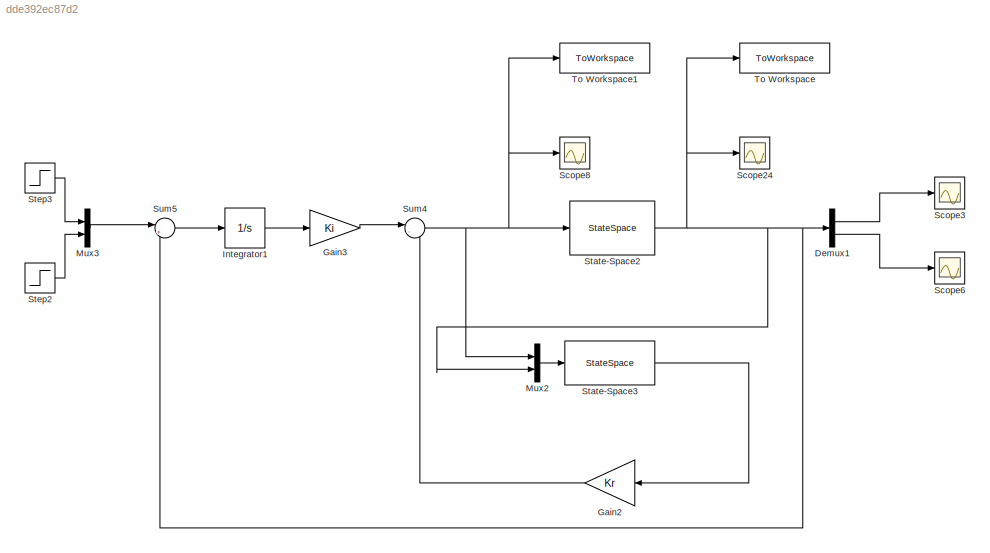
MODEL slx_dde392ec87d2
KIND model
CONFIG AbsTol = auto
CONFIG EnableMultiTasking = off
CONFIG FixedStep = auto
CONFIG MaxStep = auto
CONFIG MinStep = auto
CONFIG RelTol = 1e-3
CONFIG SampleTimeConstraint = Unconstrained
CONFIG SolverName = VariableStepAuto
CONFIG StartTime = 0.0
CONFIG StopTime = 50
BLOCK [Demux] Demux1
  Outputs = 2
BLOCK [Gain] Gain2
  Gain = Kr
  Multiplication = Matrix(K*u)
  NameLocation = top
BLOCK [Gain] Gain3
  Gain = Ki
  Multiplication = Matrix(K*u)
BLOCK [Integrator] Integrator1
BLOCK [Mux] Mux2
  DisplayOption = bar
  Inputs = 2
BLOCK [Mux] Mux3
  DisplayOption = bar
  Inputs = 2
BLOCK [Scope] Scope24
  Floating = off
  NumInputPorts = 1
  ScopeSpecificationString = Simulink.scopes.TimeScopeBlockCfg('CurrentConfiguration', extmgr.ConfigurationSet(extmgr.Configuration('Core','General UI',true),extmgr.Configuration('Core','Source UI',true),extmgr.Configuration('Sources','WiredSimulink',true,'DataLoggingVariableName','ScopeData1'),extmgr.Configuration('Visuals','Time Domain',true,'SerializedDisplays',{struct('MinYLimReal','-1.1979','MaxYLimReal','3.49413','YLabe...<+1449ch>
BLOCK [Scope] Scope3
  Floating = off
  NumInputPorts = 1
  ScopeSpecificationString = Simulink.scopes.TimeScopeBlockCfg('CurrentConfiguration', extmgr.ConfigurationSet(extmgr.Configuration('Core','General UI',true),extmgr.Configuration('Core','Source UI',true),extmgr.Configuration('Sources','WiredSimulink',true,'DataLoggingVariableName','ScopeData2'),extmgr.Configuration('Visuals','Time Domain',true,'SerializedDisplays',{struct('MinYLimReal','-0.30012','MaxYLimReal','2.70104','YLab...<+1440ch>
BLOCK [Scope] Scope6
  Floating = off
  NumInputPorts = 1
  ScopeSpecificationString = Simulink.scopes.TimeScopeBlockCfg('CurrentConfiguration', extmgr.ConfigurationSet(extmgr.Configuration('Core','General UI',true),extmgr.Configuration('Core','Source UI',true),extmgr.Configuration('Sources','WiredSimulink',true,'DataLoggingVariableName','ScopeData3'),extmgr.Configuration('Visuals','Time Domain',true,'SerializedDisplays',{struct('MinYLimReal','-0.34713','MaxYLimReal','3.12413','YLab...<+1444ch>
BLOCK [Scope] Scope8
  Floating = off
  NumInputPorts = 1
  ScopeSpecificationString = Simulink.scopes.TimeScopeBlockCfg('CurrentConfiguration', extmgr.ConfigurationSet(extmgr.Configuration('Core','General UI',true),extmgr.Configuration('Core','Source UI',true),extmgr.Configuration('Sources','WiredSimulink',true),extmgr.Configuration('Visuals','Time Domain',true,'SerializedDisplays',{struct('MinYLimReal','-6362.51074','MaxYLimReal','5378.61327','YLabelReal','','MinYLimMag','  0.0000...<+1434ch>
BLOCK [StateSpace] State-Space2
  A = A
  B = B
  C = C
  D = D
  InitialCondition = 0
  ParameterTunability = Unconstrained
BLOCK [StateSpace] State-Space3
  A = A_obs
  B = B_obs
  C = C_obs
  D = D_obs
  InitialCondition = 0
BLOCK [Step] Step2
  After = 2.5
  SampleTime = 0
  Time = 0
BLOCK [Step] Step3
  After = 2
  SampleTime = 0
  Time = 0
BLOCK [Sum] Sum4
  Inputs = |--
BLOCK [Sum] Sum5
  Inputs = |+-
BLOCK [ToWorkspace] To Workspace
  FixptAsFi = on
  MaxDataPoints = inf
  SampleTime = -1
  SaveFormat = Structure With Time
  VariableName = output
BLOCK [ToWorkspace] To Workspace1
  FixptAsFi = on
  MaxDataPoints = inf
  SampleTime = -1
  SaveFormat = Structure With Time
  VariableName = control
LINE Demux1:1 -> Scope3:1
LINE Demux1:2 -> Scope6:1
LINE Gain2:1 -> Sum4:2
LINE Gain3:1 -> Sum4:1
LINE Integrator1:1 -> Gain3:1
LINE Mux2:1 -> State-Space3:1
LINE Mux3:1 -> Sum5:1
NET State-Space2:1 -> Demux1:1, Mux2:2, Scope24:1, Sum5:2, To Workspace:1
LINE State-Space3:1 -> Gain2:1
LINE Step2:1 -> Mux3:2
LINE Step3:1 -> Mux3:1
NET Sum4:1 -> Mux2:1, Scope8:1, State-Space2:1, To Workspace1:1
LINE Sum5:1 -> Integrator1:1
note: NET lines group one-source signal fan-out (src -> all destinations, sorted); 1:1 wires keep LINE
